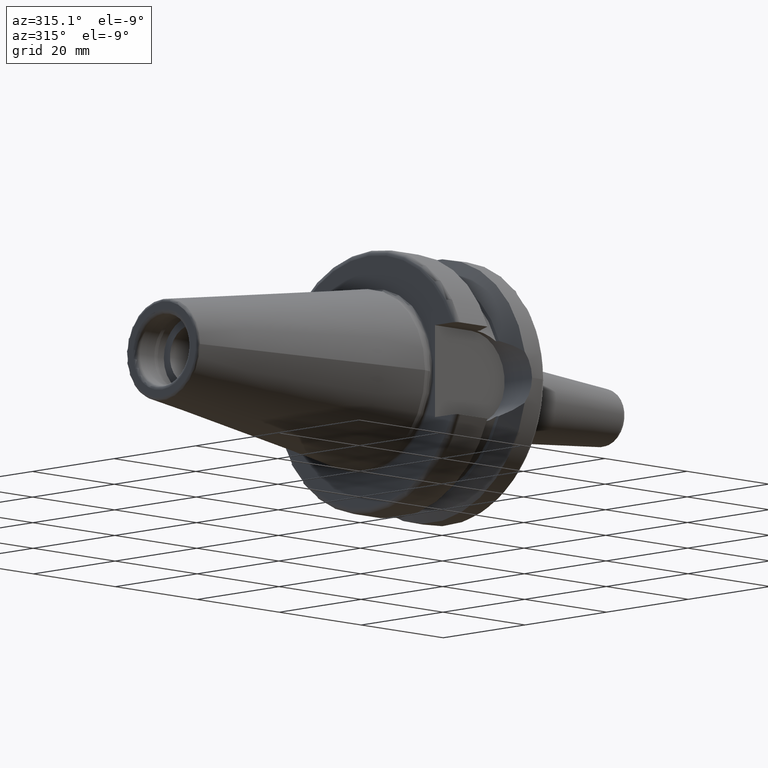
[diagram: clean part render]
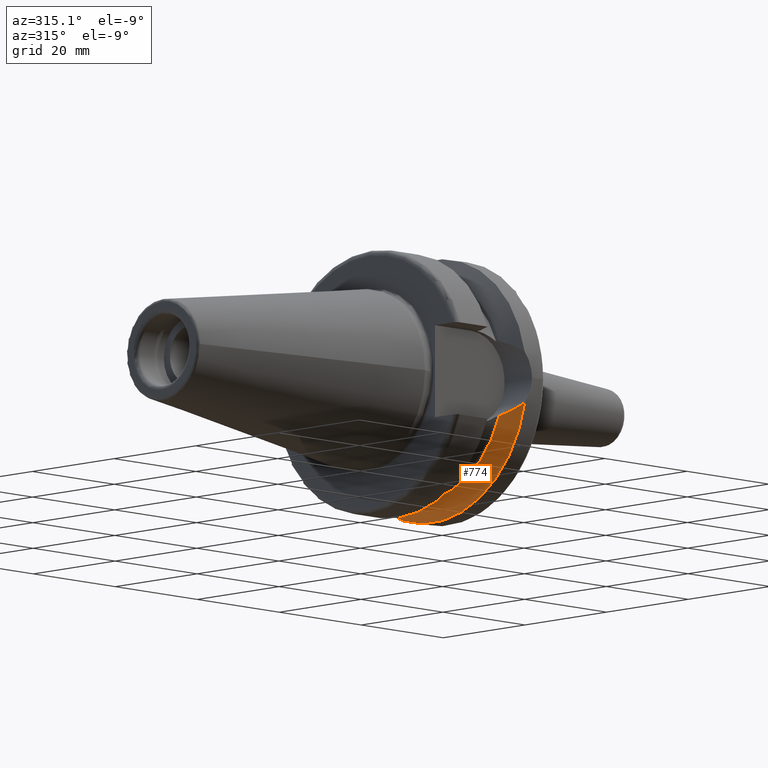
[diagram: same view with one face highlighted and labeled with its STEP entity id]
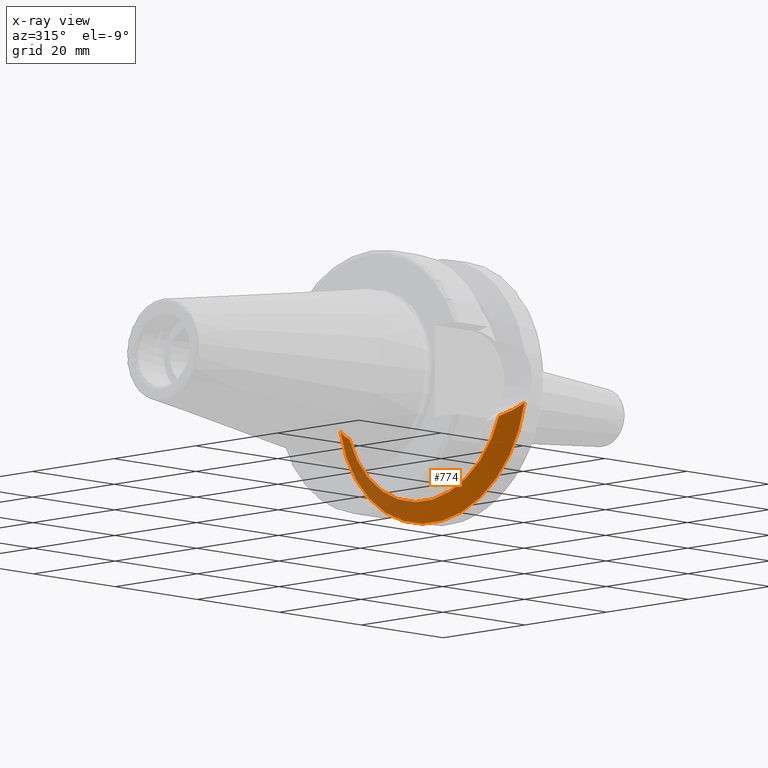
[diagram: x-ray of the same camera — body ghosted, the highlighted face saturated]
A machine part, auxiliary view. The second image highlights one B-rep face of the part: STEP entity #774.
The next image is the same camera in x-ray: the body ghosted, the highlighted face saturated — about 26% of this face is hidden behind the body in this view.
In plain terms, the highlighted conical surface has half-angle 60.125 deg.
Its self-contained STEP definition (entity closure, byte-faithful):
#21=B_SPLINE_CURVE_WITH_KNOTS('',3,(#1253,#1254,#1255,#1256,#1257,#1258),
 .UNSPECIFIED.,.F.,.F.,(4,2,4),(7.68395213088373,8.02991733611869,8.17688748303414),
 .UNSPECIFIED.);
#30=B_SPLINE_CURVE_WITH_KNOTS('',3,(#1368,#1369,#1370,#1371,#1372,#1373),
 .UNSPECIFIED.,.F.,.F.,(4,2,4),(3.44756284108881,3.59453298800427,3.94049819323923),
 .UNSPECIFIED.);
#41=CONICAL_SURFACE('',#868,21.2331286619655,1.04937921276159);
#175=FACE_OUTER_BOUND('',#224,.T.);
#224=EDGE_LOOP('',(#599,#600,#601,#602));
#279=CIRCLE('',#865,23.);
#282=CIRCLE('',#869,19.466257323931);
#335=VERTEX_POINT('',#1250);
#336=VERTEX_POINT('',#1252);
#356=VERTEX_POINT('',#1350);
#358=VERTEX_POINT('',#1366);
#421=EDGE_CURVE('',#335,#336,#21,.T.);
#445=EDGE_CURVE('',#336,#356,#279,.T.);
#449=EDGE_CURVE('',#335,#358,#282,.T.);
#450=EDGE_CURVE('',#356,#358,#30,.T.);
#599=ORIENTED_EDGE('',*,*,#421,.F.);
#600=ORIENTED_EDGE('',*,*,#449,.T.);
#601=ORIENTED_EDGE('',*,*,#450,.F.);
#602=ORIENTED_EDGE('',*,*,#445,.F.);
#774=ADVANCED_FACE('',(#175),#41,.T.);
#865=AXIS2_PLACEMENT_3D('',#1351,#1028,#1029);
#868=AXIS2_PLACEMENT_3D('',#1365,#1034,#1035);
#869=AXIS2_PLACEMENT_3D('',#1367,#1036,#1037);
#1028=DIRECTION('center_axis',(1.,1.62798202122572E-21,0.));
#1029=DIRECTION('ref_axis',(0.,0.,-1.));
#1034=DIRECTION('center_axis',(1.,1.62798202122572E-21,0.));
#1035=DIRECTION('ref_axis',(0.,1.,0.));
#1036=DIRECTION('center_axis',(1.,1.62798202122572E-21,0.));
#1037=DIRECTION('ref_axis',(0.,0.,-1.));
#1250=CARTESIAN_POINT('',(15.6,-18.3236233917175,-6.57114906237867));
#1252=CARTESIAN_POINT('',(17.6299409595063,-22.5570191120744,-4.49231441213885));
#1253=CARTESIAN_POINT('Ctrl Pts',(15.6,-18.3236233917175,-6.57114906237867));
#1254=CARTESIAN_POINT('Ctrl Pts',(16.1098572405085,-19.3959223553921,-6.21035429941431));
#1255=CARTESIAN_POINT('Ctrl Pts',(16.6013448473778,-20.4213600687136,-5.77346727707879));
#1256=CARTESIAN_POINT('Ctrl Pts',(17.2377433516599,-21.744048580855,-5.03500381733928));
#1257=CARTESIAN_POINT('Ctrl Pts',(17.4363948664282,-22.1561594342104,-4.78011182703288));
#1258=CARTESIAN_POINT('Ctrl Pts',(17.6299409595063,-22.5570191120744,-4.49231441213885));
#1350=CARTESIAN_POINT('',(17.6299409595063,22.5570191120744,-4.49231441213885));
#1351=CARTESIAN_POINT('Origin',(17.6299409595063,2.08176427085476E-15,0.));
#1365=CARTESIAN_POINT('Origin',(16.6149704797531,2.08176261850107E-15,0.));
#1366=CARTESIAN_POINT('',(15.6,18.3236233917175,-6.57114906237867));
#1367=CARTESIAN_POINT('Origin',(15.6,2.08176096614738E-15,0.));
#1368=CARTESIAN_POINT('Ctrl Pts',(17.6299409595063,22.5570191120744,-4.49231441213885));
#1369=CARTESIAN_POINT('Ctrl Pts',(17.4363948664282,22.1561594342104,-4.78011182703289));
#1370=CARTESIAN_POINT('Ctrl Pts',(17.2377433516599,21.744048580855,-5.03500381733928));
#1371=CARTESIAN_POINT('Ctrl Pts',(16.6013448473778,20.4213600687136,-5.77346727707879));
#1372=CARTESIAN_POINT('Ctrl Pts',(16.1098572405085,19.3959223553921,-6.21035429941431));
#1373=CARTESIAN_POINT('Ctrl Pts',(15.6,18.3236233917175,-6.57114906237867));